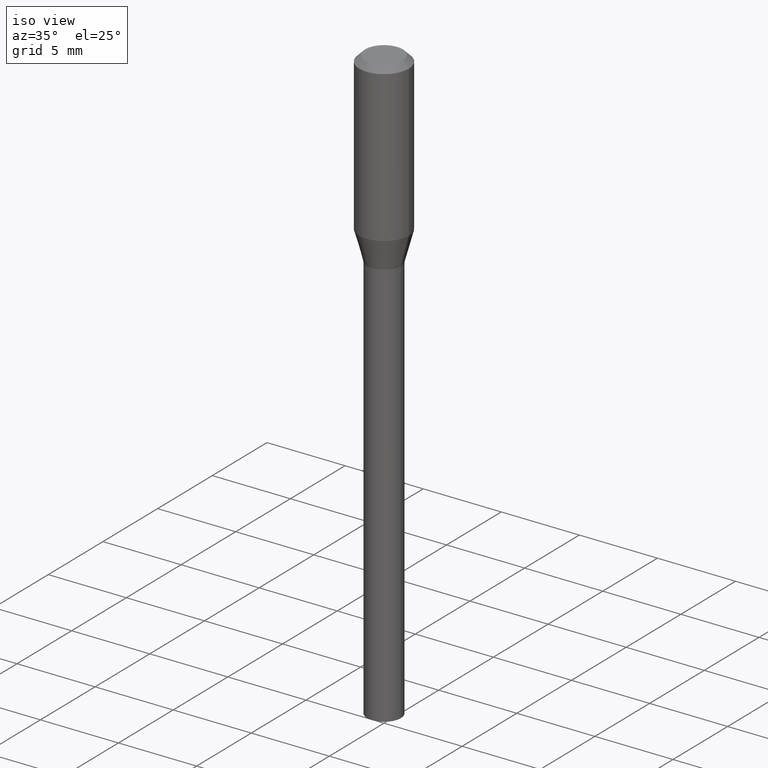
[diagram: clean part render]
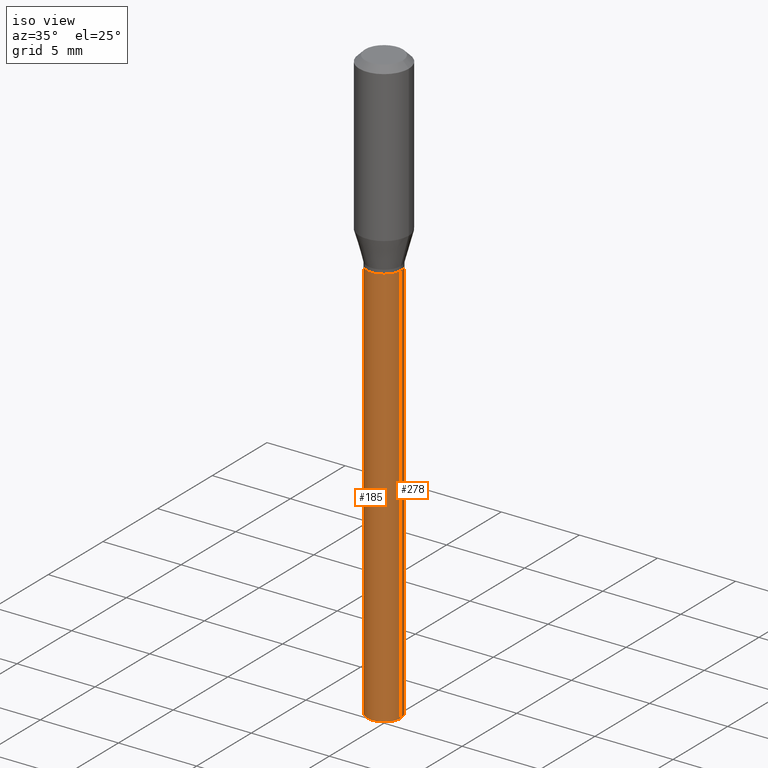
[diagram: same view with one multi-face feature highlighted, each face labeled with its STEP entity id]
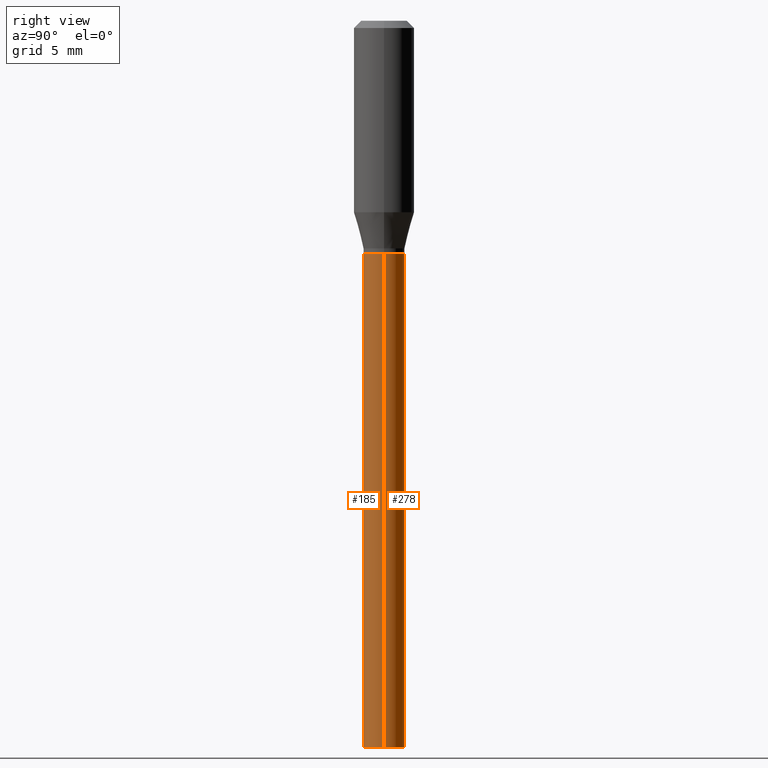
[diagram: same view with one multi-face feature highlighted, each face labeled with its STEP entity id]
A machine part, iso view. The highlighted faces form ONE feature: a constant-radius fillet chain: 2 tangent blend faces with common blend radius 1.0795 mm. The faces share edges in the B-rep.
A second angle (right view) of the same feature is appended — it is thin or edge-on in the first view.
Their STEP definitions:
[1] entity #278 (Cylinder):
#3 = VERTEX_POINT ( 'NONE', #337 ) ;
#15 = DIRECTION ( 'NONE',  ( 1.000000000000000000, -6.982962677686265133E-15, 0.000000000000000000 ) ) ;
#30 = AXIS2_PLACEMENT_3D ( 'NONE', #187, #377, #255 ) ;
#35 = DIRECTION ( 'NONE',  ( 1.000000000000000000, -6.982962677686267499E-15, 4.876176775795935793E-29 ) ) ;
#38 = ORIENTED_EDGE ( 'NONE', *, *, #56, .T. ) ;
#40 = CARTESIAN_POINT ( 'NONE',  ( -0.04249999999999999611, 3.019806626980425514E-16, -2.090547413358334859E-30 ) ) ;
#56 = EDGE_CURVE ( 'NONE', #407, #103, #412, .T. ) ;
#83 = DIRECTION ( 'NONE',  ( -2.445468806185136877E-29, 3.491481338843145188E-15, 1.000000000000000000 ) ) ;
#103 = VERTEX_POINT ( 'NONE', #276 ) ;
#107 = EDGE_LOOP ( 'NONE', ( #38, #286, #403, #156 ) ) ;
#108 = CARTESIAN_POINT ( 'NONE',  ( 0.000000000000000000, 0.000000000000000000, 0.000000000000000000 ) ) ;
#114 = CARTESIAN_POINT ( 'NONE',  ( 0.04249999999999999611, -2.967759138016663549E-16, 2.072375129713272502E-30 ) ) ;
#139 = VECTOR ( 'NONE', #83, 39.37007874015748143 ) ;
#156 = ORIENTED_EDGE ( 'NONE', *, *, #321, .F. ) ;
#162 = DIRECTION ( 'NONE',  ( -2.445468806185136597E-29, 3.491481338843145583E-15, 1.000000000000000000 ) ) ;
#170 = CYLINDRICAL_SURFACE ( 'NONE', #433, 0.04249999999999999611 ) ;
#187 = CARTESIAN_POINT ( 'NONE',  ( 3.668203209277704895E-29, -5.237222008264718177E-15, -1.500000000000000222 ) ) ;
#191 = VERTEX_POINT ( 'NONE', #452 ) ;
#202 = AXIS2_PLACEMENT_3D ( 'NONE', #347, #162, #15 ) ;
#208 = DIRECTION ( 'NONE',  ( -2.445468806185136597E-29, 3.491481338843145583E-15, 1.000000000000000000 ) ) ;
#218 = EDGE_CURVE ( 'NONE', #191, #3, #397, .T. ) ;
#255 = DIRECTION ( 'NONE',  ( 1.000000000000000000, -6.982962677686276177E-15, 0.000000000000000000 ) ) ;
#272 = VECTOR ( 'NONE', #426, 39.37007874015748143 ) ;
#276 = CARTESIAN_POINT ( 'NONE',  ( -0.04249999999999999611, -3.154585862756671481E-15, -1.500000000000000222 ) ) ;
#278 = ADVANCED_FACE ( 'NONE', ( #401 ), #170, .T. ) ;
#286 = ORIENTED_EDGE ( 'NONE', *, *, #421, .T. ) ;
#321 = EDGE_CURVE ( 'NONE', #407, #191, #395, .T. ) ;
#337 = CARTESIAN_POINT ( 'NONE',  ( -0.04249999999999999611, -3.154585862756671481E-15, -0.4800000000000000933 ) ) ;
#347 = CARTESIAN_POINT ( 'NONE',  ( 1.173825026968865768E-29, -1.675911042644710085E-15, -0.4800000000000000933 ) ) ;
#357 = CARTESIAN_POINT ( 'NONE',  ( 0.04249999999999999611, -5.533997922066385616E-15, -1.500000000000000222 ) ) ;
#377 = DIRECTION ( 'NONE',  ( -2.445468806185136597E-29, 3.491481338843145583E-15, 1.000000000000000000 ) ) ;
#395 = LINE ( 'NONE', #114, #272 ) ;
#397 = CIRCLE ( 'NONE', #202, 0.04249999999999999611 ) ;
#401 = FACE_OUTER_BOUND ( 'NONE', #107, .T. ) ;
#403 = ORIENTED_EDGE ( 'NONE', *, *, #218, .F. ) ;
#407 = VERTEX_POINT ( 'NONE', #357 ) ;
#412 = CIRCLE ( 'NONE', #30, 0.04249999999999999611 ) ;
#421 = EDGE_CURVE ( 'NONE', #103, #3, #441, .T. ) ;
#426 = DIRECTION ( 'NONE',  ( -2.445468806185136877E-29, 3.491481338843145188E-15, 1.000000000000000000 ) ) ;
#433 = AXIS2_PLACEMENT_3D ( 'NONE', #108, #208, #35 ) ;
#441 = LINE ( 'NONE', #40, #139 ) ;
#452 = CARTESIAN_POINT ( 'NONE',  ( 0.04249999999999999611, -1.972686956446376341E-15, -0.4800000000000000933 ) ) ;
[2] entity #185 (Cylinder):
#2 = DIRECTION ( 'NONE',  ( 1.000000000000000000, -6.982962677686265133E-15, 0.000000000000000000 ) ) ;
#3 = VERTEX_POINT ( 'NONE', #337 ) ;
#13 = ORIENTED_EDGE ( 'NONE', *, *, #421, .F. ) ;
#40 = CARTESIAN_POINT ( 'NONE',  ( -0.04249999999999999611, 3.019806626980425514E-16, -2.090547413358334859E-30 ) ) ;
#42 = DIRECTION ( 'NONE',  ( -2.445468806185136597E-29, 3.491481338843145583E-15, 1.000000000000000000 ) ) ;
#44 = DIRECTION ( 'NONE',  ( 1.000000000000000000, -6.982962677686276177E-15, 0.000000000000000000 ) ) ;
#47 = ORIENTED_EDGE ( 'NONE', *, *, #321, .T. ) ;
#57 = DIRECTION ( 'NONE',  ( 1.000000000000000000, -6.982962677686267499E-15, 4.876176775795935793E-29 ) ) ;
#83 = DIRECTION ( 'NONE',  ( -2.445468806185136877E-29, 3.491481338843145188E-15, 1.000000000000000000 ) ) ;
#103 = VERTEX_POINT ( 'NONE', #276 ) ;
#114 = CARTESIAN_POINT ( 'NONE',  ( 0.04249999999999999611, -2.967759138016663549E-16, 2.072375129713272502E-30 ) ) ;
#139 = VECTOR ( 'NONE', #83, 39.37007874015748143 ) ;
#158 = CIRCLE ( 'NONE', #404, 0.04249999999999999611 ) ;
#185 = ADVANCED_FACE ( 'NONE', ( #238 ), #234, .T. ) ;
#191 = VERTEX_POINT ( 'NONE', #452 ) ;
#210 = DIRECTION ( 'NONE',  ( -2.445468806185136597E-29, 3.491481338843145583E-15, 1.000000000000000000 ) ) ;
#234 = CYLINDRICAL_SURFACE ( 'NONE', #341, 0.04249999999999999611 ) ;
#238 = FACE_OUTER_BOUND ( 'NONE', #297, .T. ) ;
#252 = CARTESIAN_POINT ( 'NONE',  ( 1.173825026968865768E-29, -1.675911042644710085E-15, -0.4800000000000000933 ) ) ;
#272 = VECTOR ( 'NONE', #426, 39.37007874015748143 ) ;
#276 = CARTESIAN_POINT ( 'NONE',  ( -0.04249999999999999611, -3.154585862756671481E-15, -1.500000000000000222 ) ) ;
#279 = CARTESIAN_POINT ( 'NONE',  ( 0.000000000000000000, 0.000000000000000000, 0.000000000000000000 ) ) ;
#293 = ORIENTED_EDGE ( 'NONE', *, *, #344, .F. ) ;
#295 = CARTESIAN_POINT ( 'NONE',  ( 3.668203209277704895E-29, -5.237222008264718177E-15, -1.500000000000000222 ) ) ;
#297 = EDGE_LOOP ( 'NONE', ( #13, #366, #47, #293 ) ) ;
#305 = AXIS2_PLACEMENT_3D ( 'NONE', #295, #42, #44 ) ;
#310 = DIRECTION ( 'NONE',  ( -2.445468806185136597E-29, 3.491481338843145583E-15, 1.000000000000000000 ) ) ;
#311 = CIRCLE ( 'NONE', #305, 0.04249999999999999611 ) ;
#321 = EDGE_CURVE ( 'NONE', #407, #191, #395, .T. ) ;
#337 = CARTESIAN_POINT ( 'NONE',  ( -0.04249999999999999611, -3.154585862756671481E-15, -0.4800000000000000933 ) ) ;
#341 = AXIS2_PLACEMENT_3D ( 'NONE', #279, #310, #57 ) ;
#344 = EDGE_CURVE ( 'NONE', #3, #191, #158, .T. ) ;
#357 = CARTESIAN_POINT ( 'NONE',  ( 0.04249999999999999611, -5.533997922066385616E-15, -1.500000000000000222 ) ) ;
#366 = ORIENTED_EDGE ( 'NONE', *, *, #453, .T. ) ;
#395 = LINE ( 'NONE', #114, #272 ) ;
#404 = AXIS2_PLACEMENT_3D ( 'NONE', #252, #210, #2 ) ;
#407 = VERTEX_POINT ( 'NONE', #357 ) ;
#421 = EDGE_CURVE ( 'NONE', #103, #3, #441, .T. ) ;
#426 = DIRECTION ( 'NONE',  ( -2.445468806185136877E-29, 3.491481338843145188E-15, 1.000000000000000000 ) ) ;
#441 = LINE ( 'NONE', #40, #139 ) ;
#452 = CARTESIAN_POINT ( 'NONE',  ( 0.04249999999999999611, -1.972686956446376341E-15, -0.4800000000000000933 ) ) ;
#453 = EDGE_CURVE ( 'NONE', #103, #407, #311, .T. ) ;